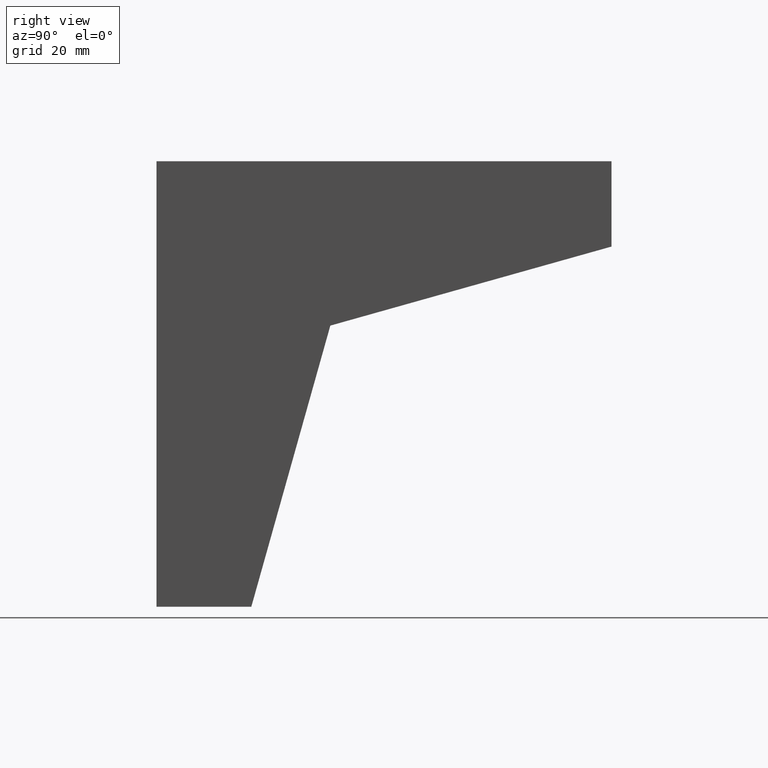
[diagram: clean part render]
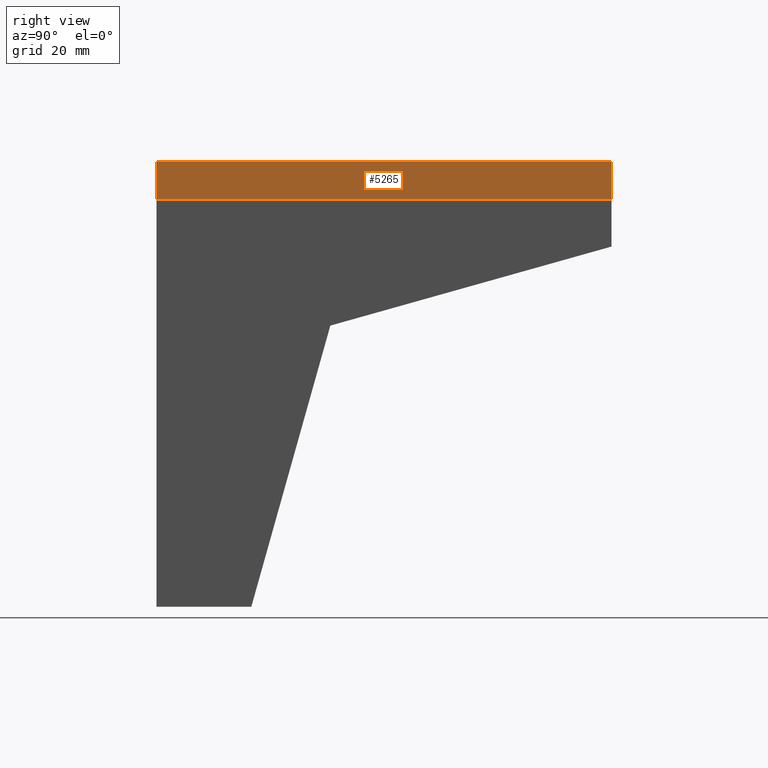
[diagram: same view with one face highlighted and labeled with its STEP entity id]
A machine part, right view. The second image highlights one B-rep face of the part: STEP entity #5265.
In plain terms, the highlighted planar face has unit normal (-1, -0, 0).
Its self-contained STEP definition (entity closure, byte-faithful):
#300 = CARTESIAN_POINT ( 'NONE',  ( 38.00000000000000000, 96.00000000000000000, 50.99999999999998600 ) ) ;
#686 = DIRECTION ( 'NONE',  ( -1.445602896647339200E-016, 1.000000000000000000, -0.0000000000000000000 ) ) ;
#1573 = CARTESIAN_POINT ( 'NONE',  ( 38.00000000000000000, 96.00000000000000000, 50.99999999999998600 ) ) ;
#1663 = FACE_OUTER_BOUND ( 'NONE', #6517, .T. ) ;
#1678 = CARTESIAN_POINT ( 'NONE',  ( 38.00000000000000000, 96.00000000000000000, 42.99999999999998600 ) ) ;
#3441 = EDGE_CURVE ( 'NONE', #26766, #13024, #19729, .T. ) ;
#4114 = VERTEX_POINT ( 'NONE', #1678 ) ;
#5265 = ADVANCED_FACE ( 'NONE', ( #1663 ), #12228, .F. ) ;
#5370 = EDGE_CURVE ( 'NONE', #13024, #4114, #15341, .T. ) ;
#5758 = ORIENTED_EDGE ( 'NONE', *, *, #5370, .T. ) ;
#6046 = CARTESIAN_POINT ( 'NONE',  ( 38.00000000000001400, 0.0000000000000000000, 50.99999999999998600 ) ) ;
#6517 = EDGE_LOOP ( 'NONE', ( #5758, #7437, #22821, #34628 ) ) ;
#7437 = ORIENTED_EDGE ( 'NONE', *, *, #33174, .F. ) ;
#7598 = CARTESIAN_POINT ( 'NONE',  ( 38.00000000000001400, 0.0000000000000000000, 42.99999999999998600 ) ) ;
#9209 = EDGE_CURVE ( 'NONE', #26766, #33311, #11693, .T. ) ;
#11533 = DIRECTION ( 'NONE',  ( -0.0000000000000000000, -0.0000000000000000000, -1.000000000000000000 ) ) ;
#11693 = LINE ( 'NONE', #27921, #30058 ) ;
#12228 = PLANE ( 'NONE',  #29314 ) ;
#12525 = VECTOR ( 'NONE', #11533, 1000.000000000000000 ) ;
#12770 = VECTOR ( 'NONE', #32067, 1000.000000000000000 ) ;
#13024 = VERTEX_POINT ( 'NONE', #7598 ) ;
#14950 = DIRECTION ( 'NONE',  ( 1.445602896647339200E-016, -1.000000000000000000, 0.0000000000000000000 ) ) ;
#15341 = LINE ( 'NONE', #15888, #12770 ) ;
#15639 = CARTESIAN_POINT ( 'NONE',  ( 38.00000000000001400, 0.0000000000000000000, 50.99999999999998600 ) ) ;
#15888 = CARTESIAN_POINT ( 'NONE',  ( 38.00000000000000000, 96.00000000000000000, 42.99999999999998600 ) ) ;
#19729 = LINE ( 'NONE', #6046, #12525 ) ;
#20617 = DIRECTION ( 'NONE',  ( -1.000000000000000000, -1.445602896647339200E-016, 0.0000000000000000000 ) ) ;
#22233 = DIRECTION ( 'NONE',  ( -0.0000000000000000000, -0.0000000000000000000, -1.000000000000000000 ) ) ;
#22821 = ORIENTED_EDGE ( 'NONE', *, *, #9209, .F. ) ;
#23205 = VECTOR ( 'NONE', #22233, 1000.000000000000000 ) ;
#26766 = VERTEX_POINT ( 'NONE', #15639 ) ;
#27921 = CARTESIAN_POINT ( 'NONE',  ( 38.00000000000000000, 96.00000000000000000, 50.99999999999998600 ) ) ;
#28856 = LINE ( 'NONE', #300, #23205 ) ;
#29314 = AXIS2_PLACEMENT_3D ( 'NONE', #1573, #20617, #14950 ) ;
#30058 = VECTOR ( 'NONE', #686, 1000.000000000000000 ) ;
#32067 = DIRECTION ( 'NONE',  ( -1.445602896647339200E-016, 1.000000000000000000, -0.0000000000000000000 ) ) ;
#33174 = EDGE_CURVE ( 'NONE', #33311, #4114, #28856, .T. ) ;
#33311 = VERTEX_POINT ( 'NONE', #34623 ) ;
#34623 = CARTESIAN_POINT ( 'NONE',  ( 38.00000000000000000, 96.00000000000000000, 50.99999999999998600 ) ) ;
#34628 = ORIENTED_EDGE ( 'NONE', *, *, #3441, .T. ) ;